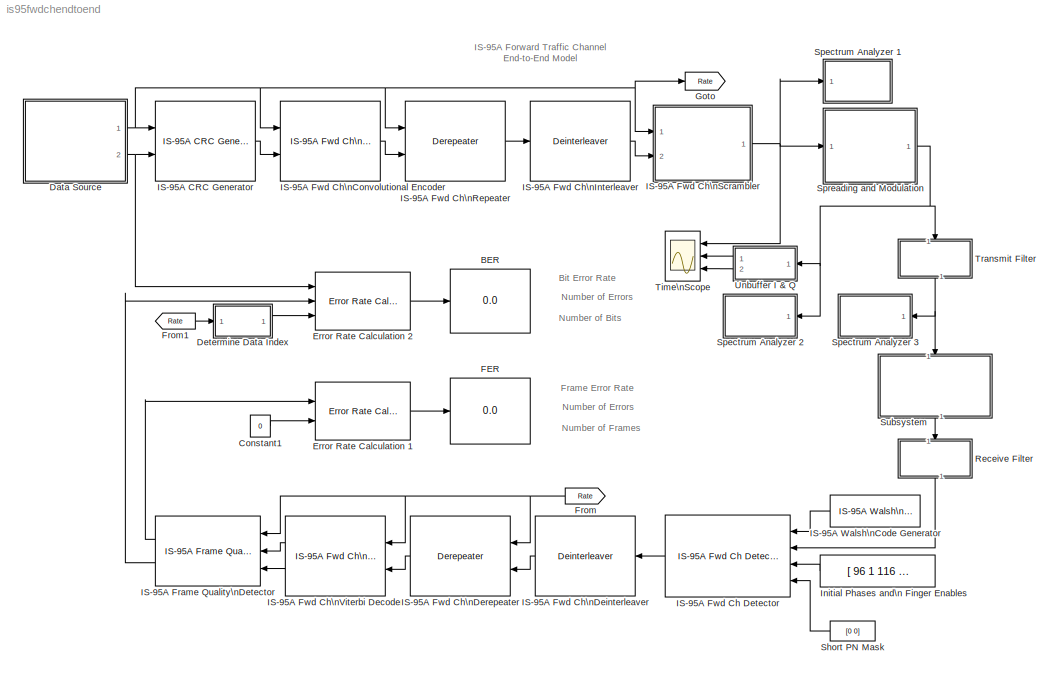
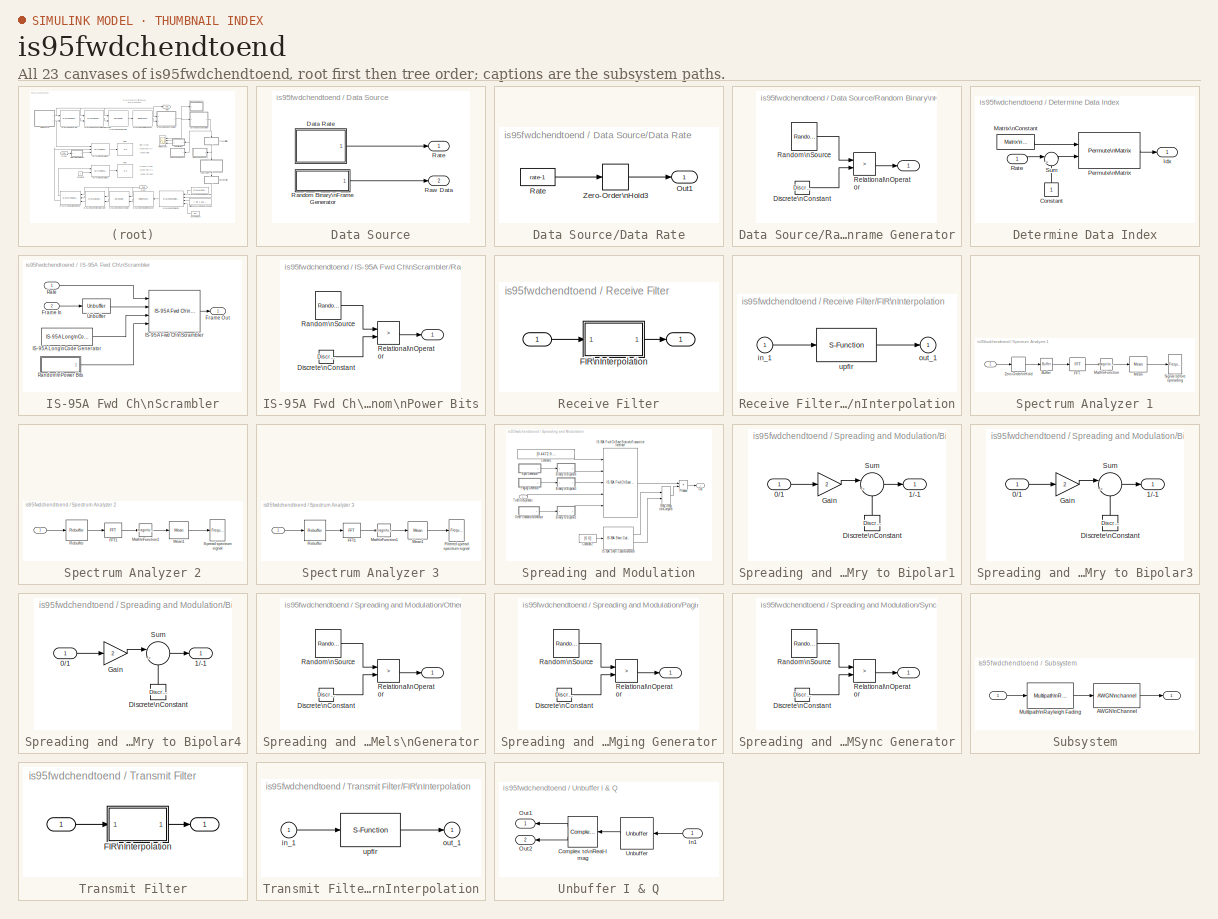
[diagram: thumbnail index - all 23 canvases of the model, root first then tree order]
MODEL is95fwdchendtoend
KIND model
CONFIG AbsTol = 1e-6
CONFIG FixedStep = auto
CONFIG MaxStep = auto
CONFIG MinStep = auto
CONFIG RelTol = 1e-3
CONFIG Solver = VariableStepDiscrete
CONFIG SolverMode = SingleTasking
CONFIG StartTime = 0.0
CONFIG StopTime = 600
BLOCK [Display] BER
  Decimation = 1
  Floating = off
  Format = short
  Ports = [1]
  SampleTime = -1
BLOCK [Constant] Constant1
  Value = 0
  VectorParams1D = on
BLOCK [SubSystem] Data Source
  Ports = [0, 2]
  RTWFcnNameOpts = Auto
  RTWFileNameOpts = Auto
  RTWSystemCode = Auto
  ShowPortLabels = on
  TreatAsAtomicUnit = off
BLOCK [SubSystem] Data Source/Data Rate
  MaskDisplay = disp('Base Station \\nTransmitter\\nData Rate')
  MaskEnableString = on
  MaskIconFrame = on
  MaskIconOpaque = on
  MaskIconRotate = none
  MaskIconUnits = autoscale
  MaskPromptString = Data Rate
  MaskStyleString = popup(Full|Half|Quarter|One-Eighth)
  MaskToolTipString = on
  MaskTunableValueString = on
  MaskValueString = Full
  MaskVariables = rate=@1;
  MaskVisibilityString = on
  Ports = [0, 1]
  RTWFcnNameOpts = Auto
  RTWFileNameOpts = Auto
  RTWSystemCode = Auto
  ShowPortLabels = on
  TreatAsAtomicUnit = off
BLOCK [Outport] Data Source/Data Rate/Out1
  InitialOutput = 0
  OutputWhenDisabled = held
  Port = 1
BLOCK [Constant] Data Source/Data Rate/Rate
  Value = rate-1
  VectorParams1D = on
BLOCK [ZeroOrderHold] Data Source/Data Rate/Zero-Order\nHold3
  SampleTime = 1/50
BLOCK [SubSystem] Data Source/Random Binary\nFrame Generator
  MaskCallbackString = ||
  MaskDescription = Generate a random frame of binary integers. The output frame period is \n(Sample time) * (Output frame size).
  MaskDisplay = plot(0,0,100,100,[95,90,90,80,80,60,60,30,30,20,20,10,10,5],[25,25,75,75,25,25,75,75,25,25,75,75,25,25]);
  MaskEnableString = on,on,on
  MaskIconFrame = on
  MaskIconOpaque = on
  MaskIconRotate = none
  MaskIconUnits = autoscale
  MaskPromptString = Initial seed:|Sample time (sec):|Output frame size:
  MaskStyleString = edit,edit,edit
  MaskToolTipString = on,on,on
  MaskTunableValueString = on,on,on
  MaskType = Random binary frame generator
  MaskValueString = 1234|1/(50*268)|268
  MaskVariableAliases = ,,
  MaskVariables = seed=@1;Ts=@2;N=@3;
  MaskVisibilityString = on,on,on
  Ports = [0, 1]
  RTWFcnNameOpts = Auto
  RTWFileNameOpts = Auto
  RTWSystemCode = Auto
  ShowPortLabels = on
  TreatAsAtomicUnit = off
BLOCK [Outport] Data Source/Random Binary\nFrame Generator/ 
  InitialOutput = []
  OutputWhenDisabled = held
  Port = 1
BLOCK [Reference] Data Source/Random Binary\nFrame Generator/Discrete\nConstant  REF=dspsrcs2/Discrete\nConstant
  Ports = [0, 1]
  SourceBlock = dspsrcs2/Discrete\nConstant
  SourceType = Discrete Constant
  Ts = Ts*N
  Value = 0
BLOCK [Reference] Data Source/Random Binary\nFrame Generator/Random\nSource  REF=dspsrcs2/Random\nSource
  Diagnostics = AllowInheritedTsInSrc
  Inherit = off
  Max = 1
  Mean = 0
  Min = 0
  OutComplex = Real
  Ports = [0, 1]
  SampFrame = N
  SampMode = Discrete
  SampTime = Ts
  Seed = seed
  SourceBlock = dspsrcs2/Random\nSource
  SourceType = Random Source
  SrcType = Gaussian
  Var = 1
BLOCK [RelationalOperator] Data Source/Random Binary\nFrame Generator/Relational\nOperator
  Operator = >
BLOCK [Outport] Data Source/Rate
  InitialOutput = 0
  OutputWhenDisabled = held
  Port = 1
BLOCK [Outport] Data Source/Raw Data
  InitialOutput = 0
  OutputWhenDisabled = held
  Port = 2
BLOCK [SubSystem] Determine Data Index
  MaskDescription = Deterime index of valid data in the frame based upon rate set and rate input.
  MaskEnableString = on
  MaskIconFrame = on
  MaskIconOpaque = on
  MaskIconRotate = none
  MaskIconUnits = autoscale
  MaskInitialization = if(rateSet==1)\n% --- Rate Set 1\n   R1F = buffer(1:172,268);\n   R1H = buffer(1:80,268);\n   R1Q = buffer(1:40,268);\n   R1E = buffer(1:16,268);\n   idxMat = [R1F R1H R1Q R1E];\nelse\n   % --- Rate Set 2\n   R2F = [1:268]';\n   R2H = buffer(1:126,268);\n   R2Q = buffer(1:56,268);\n   R2E = buffer(1:22,268);\n   idxMat = [R2F R2H R2Q R2E];\nend;\n
  MaskPromptString = Rate set:
  MaskStyleString = popup(Rate Set I|Rate Set II)
  MaskToolTipString = on
  MaskTunableValueString = on
  MaskType = Determine Data Index
  MaskValueString = Rate Set I
  MaskVariables = rateSet=@1;
  MaskVisibilityString = on
  Ports = [1, 1]
  RTWFcnNameOpts = Auto
  RTWFileNameOpts = Auto
  RTWSystemCode = Auto
  ShowPortLabels = on
  TreatAsAtomicUnit = off
BLOCK [Constant] Determine Data Index/Constant
  Value = 1
  VectorParams1D = on
BLOCK [Outport] Determine Data Index/Idx
  InitialOutput = []
  OutputWhenDisabled = held
  Port = 1
BLOCK [Reference] Determine Data Index/Matrix\nConstant  REF=dspmtrx2/Matrix\nConstant
  M = idxMat
  Ports = [0, 1]
  SourceBlock = dspmtrx2/Matrix\nConstant
  SourceType = Matrix Constant
BLOCK [Reference] Determine Data Index/Permute\nMatrix  REF=dspmtrx2/Permute\nMatrix
  Ports = [2, 1]
  SourceBlock = dspmtrx2/Permute\nMatrix
  SourceType = Permute Matrix
  cols = 4
  errmode = Clip Index
  mode = Columns
BLOCK [Inport] Determine Data Index/Rate
  Interpolate = on
  Port = 1
BLOCK [Sum] Determine Data Index/Sum
  IconShape = round
  Inputs = |++
  Ports = [2, 1]
  SaturateOnIntegerOverflow = on
BLOCK [Reference] Error Rate Calculation 1  REF=commsink/Error Rate Calculation
  N = 0
  PMode = Port
  Ports = [2, 1]
  RsMode2 = off
  SourceBlock = commsink/Error Rate Calculation
  SourceType = Error Rate Calculation
  WsName = ErrorVec
  cp_mode = Entire frame
  st_delay = 4
  subframe = []
BLOCK [Reference] Error Rate Calculation 2  REF=commsink/Error Rate Calculation
  N = 2*268
  PMode = Port
  Ports = [3, 1]
  RsMode2 = off
  SourceBlock = commsink/Error Rate Calculation
  SourceType = Error Rate Calculation
  WsName = ErrorVec
  cp_mode = Select samples from port
  st_delay = 2*268
  subframe = []
BLOCK [Display] FER
  Decimation = 1
  Floating = off
  Format = short
  Ports = [1]
  SampleTime = -1
BLOCK [From] From
  CloseFcn = tagdialog Close
  GotoTag = Rate
BLOCK [From] From1
  CloseFcn = tagdialog Close
  GotoTag = Rate
BLOCK [Goto] Goto
  GotoTag = Rate
  TagVisibility = local
BLOCK [Reference] IS-95A CRC Generator  REF=cdmalib/IS-95A Common/IS-95A CRC Generator  (lib defined in mdl_250e8a714707)
  Ports = [2, 1]
  SourceBlock = cdmalib/IS-95A Common/IS-95A CRC Generator
  SourceType = IS-95A CRC Generator
  ch_type = Traffic
  rate_set = Rate Set I
BLOCK [Reference] IS-95A Frame Quality\nDetector  REF=cdmalib/IS-95A Common/IS-95A Frame Quality \nDetector  (lib defined in mdl_250e8a714707)
  Ports = [3, 2]
  SourceBlock = cdmalib/IS-95A Common/IS-95A Frame Quality \nDetector
  SourceType = IS-95A Frame Quality Detector
  chType = Traffic
  rate2_metric = 0.9*1.5
  rate3_metric = 0.85*1.5
  rateSet = Rate Set I
BLOCK [Reference] IS-95A Fwd Ch Detector  REF=cdmalib/IS-95A Mobile Station Receiver/IS-95A Fwd Ch Detector  (lib defined in mdl_250e8a714707)
  Ports = [4, 1]
  SourceBlock = cdmalib/IS-95A Mobile Station Receiver/IS-95A Fwd Ch Detector
  SourceType = IS-95A Fwd Ch Detector
  numSymb = 1
  rake_buff_size = 3
  rake_oversamp = 8
  rateSet = Rate Set I
  sampTime = 1/(50*384)
  wlshOrd = 6
BLOCK [Reference] IS-95A Fwd Ch\nConvolutional Encoder  REF=cdmalib/IS-95A Base Station Transmitter/IS-95A Fwd Ch\nConvolutional Encoder  (lib defined in mdl_250e8a714707)
  Ports = [2, 1]
  SourceBlock = cdmalib/IS-95A Base Station Transmitter/IS-95A Fwd Ch\nConvolutional Encoder
  SourceType = IS-95A Fwd Ch Convolutional Encoder
  ch_type = Traffic
  enc_state = []
  rate_set = Rate Set I
BLOCK [Reference] IS-95A Fwd Ch\nDeinterleaver  REF=cdmalib/IS-95A Base Station Transmitter/IS-95A Fwd Ch\nInterleaver//Deinterleaver  (lib defined in mdl_250e8a714707)
  Ports = [1, 1]
  SourceBlock = cdmalib/IS-95A Base Station Transmitter/IS-95A Fwd Ch\nInterleaver//Deinterleaver
  SourceType = IS-95A Fwd Ch Interleaver/Deinterleaver
  ch_type = Traffic
  int_select = Deinterleaver
BLOCK [Reference] IS-95A Fwd Ch\nDerepeater  REF=cdmalib/IS-95A Base Station Transmitter/IS-95A Fwd Ch\nRepeater//Derepeater  (lib defined in mdl_250e8a714707)
  Ports = [2, 1]
  SourceBlock = cdmalib/IS-95A Base Station Transmitter/IS-95A Fwd Ch\nRepeater//Derepeater
  SourceType = IS-95A Fwd Ch Repeater/Derepeater
  ch_type = Traffic
  rate_set = Rate Set I
  rep_select = Derepeater
BLOCK [Reference] IS-95A Fwd Ch\nInterleaver  REF=cdmalib/IS-95A Base Station Transmitter/IS-95A Fwd Ch\nInterleaver//Deinterleaver  (lib defined in mdl_250e8a714707)
  Ports = [1, 1]
  SourceBlock = cdmalib/IS-95A Base Station Transmitter/IS-95A Fwd Ch\nInterleaver//Deinterleaver
  SourceType = IS-95A Fwd Ch Interleaver/Deinterleaver
  ch_type = Traffic
  int_select = Interleaver
BLOCK [Reference] IS-95A Fwd Ch\nRepeater  REF=cdmalib/IS-95A Base Station Transmitter/IS-95A Fwd Ch\nRepeater//Derepeater  (lib defined in mdl_250e8a714707)
  Ports = [2, 1]
  SourceBlock = cdmalib/IS-95A Base Station Transmitter/IS-95A Fwd Ch\nRepeater//Derepeater
  SourceType = IS-95A Fwd Ch Repeater/Derepeater
  ch_type = Traffic
  rate_set = Rate Set I
  rep_select = Repeater
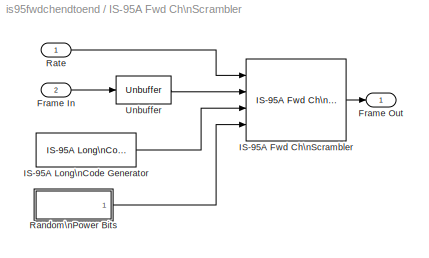
BLOCK [SubSystem] IS-95A Fwd Ch\nScrambler
  MaskCallbackString = |
  MaskDescription = Performs scrambling of the Forward Traffic channel data by the long code and the insertion of power bits in the data.
  MaskEnableString = on,on
  MaskHelp = web(cdmaweb);
  MaskIconFrame = on
  MaskIconOpaque = on
  MaskIconRotate = none
  MaskIconUnits = autoscale
  MaskPromptString = Rate Set|Channel Type
  MaskStyleString = popup(Rate Set I|Rate Set II),popup(Sync|Paging|Traffic)
  MaskToolTipString = on,on
  MaskTunableValueString = on,on
  MaskType = IS-95A Fwd Ch Scrambler
  MaskValueString = Rate Set I|Traffic
  MaskVariableAliases = ,
  MaskVariables = rate_set=@1;chType=@2;
  MaskVisibilityString = on,on
  Ports = [2, 1]
  RTWFcnNameOpts = Auto
  RTWFileNameOpts = Auto
  RTWSystemCode = Auto
  ShowPortLabels = on
  TreatAsAtomicUnit = off
BLOCK [Outport] IS-95A Fwd Ch\nScrambler/ Frame Out
  InitialOutput = 0
  OutputWhenDisabled = held
  Port = 1
BLOCK [Inport] IS-95A Fwd Ch\nScrambler/Frame In
  Interpolate = on
  Port = 2
BLOCK [Reference] IS-95A Fwd Ch\nScrambler/IS-95A Fwd Ch\nScrambler  REF=cdmalib/IS-95A Base Station Transmitter/IS-95A Fwd Ch\nScrambler  (lib defined in mdl_250e8a714707)
  Ports = [4, 1]
  SourceBlock = cdmalib/IS-95A Base Station Transmitter/IS-95A Fwd Ch\nScrambler
  SourceType = IS-95A Fwd Ch Scrambler
  chType = Traffic
  rate_set = Rate Set I
BLOCK [Reference] IS-95A Fwd Ch\nScrambler/IS-95A Long\nCode Generator  REF=cdmalib/IS-95A Common/IS-95A Long\nCode Generator  (lib defined in mdl_250e8a714707)
  Ports = [0, 1]
  SourceBlock = cdmalib/IS-95A Common/IS-95A Long\nCode Generator
  SourceType = IS-95A Long Code Generator
  num_symb = 1
  tx_lc_dec_ratio = 64
  tx_lc_init_mask = 2^41
  tx_lc_init_state = 2^41
  tx_sample_time = 1/(50*384)
BLOCK [SubSystem] IS-95A Fwd Ch\nScrambler/Random\nPower Bits
  MaskCallbackString = ||
  MaskDisplay = plot(0,0,100,100,[95,90,90,80,80,60,60,30,30,20,20,10,10,5],[25,25,75,75,25,25,75,75,25,25,75,75,25,25]);
  MaskEnableString = on,on,on
  MaskIconFrame = on
  MaskIconOpaque = on
  MaskIconRotate = none
  MaskIconUnits = autoscale
  MaskPromptString = Initial seed:|Sample time (sec):|Ouput frame size:
  MaskStyleString = edit,edit,edit
  MaskToolTipString = on,on,on
  MaskTunableValueString = on,on,on
  MaskType = Random binary frame generator
  MaskValueString = 956742|1/50/16|1
  MaskVariableAliases = ,,
  MaskVariables = seed=@1;Ts=@2;N=@3;
  MaskVisibilityString = on,on,on
  Ports = [0, 1]
  RTWFcnNameOpts = Auto
  RTWFileNameOpts = Auto
  RTWSystemCode = Auto
  ShowPortLabels = on
  TreatAsAtomicUnit = off
BLOCK [Outport] IS-95A Fwd Ch\nScrambler/Random\nPower Bits/ 
  InitialOutput = []
  OutputWhenDisabled = held
  Port = 1
BLOCK [Reference] IS-95A Fwd Ch\nScrambler/Random\nPower Bits/Discrete\nConstant  REF=dspsrcs2/Discrete\nConstant
  Ports = [0, 1]
  SourceBlock = dspsrcs2/Discrete\nConstant
  SourceType = Discrete Constant
  Ts = Ts*N
  Value = 0
BLOCK [Reference] IS-95A Fwd Ch\nScrambler/Random\nPower Bits/Random\nSource  REF=dspsrcs2/Random\nSource
  Diagnostics = AllowInheritedTsInSrc
  Inherit = off
  Max = 1
  Mean = 0
  Min = 0
  OutComplex = Real
  Ports = [0, 1]
  SampFrame = N
  SampMode = Discrete
  SampTime = Ts
  Seed = seed
  SourceBlock = dspsrcs2/Random\nSource
  SourceType = Random Source
  SrcType = Gaussian
  Var = 1
BLOCK [RelationalOperator] IS-95A Fwd Ch\nScrambler/Random\nPower Bits/Relational\nOperator
  Operator = >
BLOCK [Inport] IS-95A Fwd Ch\nScrambler/Rate
  Interpolate = on
  Port = 1
BLOCK [Reference] IS-95A Fwd Ch\nScrambler/Unbuffer  REF=dspbuff2/Unbuffer
  Ports = [1, 1]
  SourceBlock = dspbuff2/Unbuffer
  SourceType = Unbuffer
  ic = 0
  num_chans = 1
BLOCK [Reference] IS-95A Fwd Ch\nViterbi Decoder  REF=cdmalib/IS-95A Mobile Station Receiver/IS-95A Fwd Ch\nViterbi Decoder  (lib defined in mdl_250e8a714707)
  Ports = [2, 2]
  SourceBlock = cdmalib/IS-95A Mobile Station Receiver/IS-95A Fwd Ch\nViterbi Decoder
  SourceType = IS-95A Fwd Ch Viterbi Decoder
  chType = Traffic
  decodeLenRatio = 1
  rateSet = Rate Set I
  traceBackLenRatio = 1
BLOCK [Reference] IS-95A Walsh\nCode Generator  REF=cdmalib/IS-95A Common/IS-95A Walsh\nCode Generator  (lib defined in mdl_250e8a714707)
  Ports = [0, 1]
  SourceBlock = cdmalib/IS-95A Common/IS-95A Walsh\nCode Generator
  SourceType = IS-95A Walsh Code Generator
  st = 1/50/384
  wlshIndices = 38
  wlshOrd = 6
BLOCK [Constant] Initial Phases and\n Finger Enables
  Value = [ 96 1 116 1 239 1 0 0]
  VectorParams1D = on
BLOCK [SubSystem] Receive Filter
  MaskDisplay = plot( 1:prod( size( h)), h);
  MaskEnableString = on
  MaskIconFrame = on
  MaskIconOpaque = on
  MaskIconRotate = none
  MaskIconUnits = autoscale
  MaskInitialization = load txfiltx8.mat;\nh = (TxFiltCoefx8*N)/8;
  MaskPromptString = Interpolation factor:
  MaskStyleString = edit
  MaskToolTipString = on
  MaskTunableValueString = on
  MaskValueString = 1
  MaskVariables = N=@1;
  MaskVisibilityString = on
  Ports = [1, 1]
  RTWFcnNameOpts = Auto
  RTWFileNameOpts = Auto
  RTWSystemCode = Auto
  ShowPortLabels = on
  TreatAsAtomicUnit = off
BLOCK [Outport] Receive Filter/ 
  InitialOutput = []
  OutputWhenDisabled = held
  Port = 1
BLOCK [Inport] Receive Filter/   
  Interpolate = on
  Port = 1
BLOCK [SubSystem] Receive Filter/FIR\nInterpolation
  MaskCallbackString = ||dspblkupfir||
  MaskDescription = Upsample input signal by an integer factor, then apply an FIR filter.  Implemented using an efficient polyphase interpolation structure.  The filter coefficients are scaled by the interpolation factor.
  MaskDisplay = disp(str)
  MaskEnableString = on,on,on,on,on
  MaskHelp = web(dspbhelp);
  MaskIconFrame = on
  MaskIconOpaque = on
  MaskIconRotate = none
  MaskIconUnits = autoscale
  MaskInitialization = outputBufInitCond = 0;\n[str,numChans] = dspblkupfir('setup1',numChans);\n[h,framing,str]= dspblkupfir('setup2',h,L,framing);
  MaskPromptString = FIR filter coefficients:|Interpolation factor:|Frame-based inputs|Number of channels:|Framing:
  MaskSelfModifiable = on
  MaskStyleString = edit,edit,checkbox,edit,popup(Maintain input frame size|Maintain input frame rate)
  MaskToolTipString = on,on,on,on,on
  MaskTunableValueString = off,off,off,off,off
  MaskType = FIR Interpolation
  MaskValueString = h|N|on|1|Maintain input frame rate
  MaskVariableAliases = ,,,,
  MaskVariables = h=@1;L=@2;frame=&3;numChans=@4;framing=@5;
  MaskVisibilityString = on,on,on,on,on
  Ports = [1, 1]
  RTWFcnNameOpts = Auto
  RTWFileNameOpts = Auto
  RTWSystemCode = Auto
  ShowPortLabels = on
  TreatAsAtomicUnit = off
BLOCK [Inport] Receive Filter/FIR\nInterpolation/in_1
  Interpolate = on
  Port = 1
BLOCK [Outport] Receive Filter/FIR\nInterpolation/out_1
  InitialOutput = 0
  OutputWhenDisabled = held
  Port = 1
BLOCK [S-Function] Receive Filter/FIR\nInterpolation/upfir
  FunctionName = sdspupfir
  Parameters = h,L,numChans,framing,outputBufInitCond
  PortCounts = []
  Ports = [1, 1]
  SFunctionModules = ''
BLOCK [Constant] Short PN Mask
  Value = [0 0]
  VectorParams1D = on
BLOCK [SubSystem] Spectrum Analyzer 1
  MaskDisplay = disp('Spectrum\\nAnalyzer');
  MaskIconFrame = on
  MaskIconOpaque = on
  MaskIconRotate = none
  MaskIconUnits = autoscale
  Ports = [1]
  RTWFcnNameOpts = Auto
  RTWFileNameOpts = Auto
  RTWSystemCode = Auto
  ShowPortLabels = on
  TreatAsAtomicUnit = off
BLOCK [Inport] Spectrum Analyzer 1/ 
  Interpolate = on
  Port = 1
BLOCK [Reference] Spectrum Analyzer 1/Buffer  REF=dspbuff2/Buffer
  N = 1024
  Ports = [1, 1]
  SourceBlock = dspbuff2/Buffer
  SourceType = Buffer
  V = 0
  ic = 0
BLOCK [Reference] Spectrum Analyzer 1/FFT  REF=dspxfrm2/FFT
  Ports = [1, 1]
  SourceBlock = dspxfrm2/FFT
  SourceType = FFT
  nchans = 1
BLOCK [Math] Spectrum Analyzer 1/Math\nFunction
  Operator = magnitude^2
  OutputSignalType = auto
  Ports = [1, 1]
BLOCK [Reference] Spectrum Analyzer 1/Mean  REF=dspstat2/Mean
  Ports = [1, 1]
  SourceBlock = dspstat2/Mean
  SourceType = Mean
  frame = off
  nchans = 1
  reset = off
  run = on
BLOCK [Reference] Spectrum Analyzer 1/Signal before spreading  REF=dspsnks2/Frequency\nFrame Scope
  AxisGrid = on
  AxisLegend = off
  AxisParams = on
  AxisZoom = on
  Domain = Frequency
  FigPos = [339 599 602 134]
  FrameNumber = off
  HorizSpan = 1
  LineParams = off
  Memory = off
  NChans = 1
  Ports = [1]
  SourceBlock = dspsnks2/Frequency\nFrame Scope
  SourceType = Frequency Frame Scope
  XIncr = -1
  XLabel = Samples
  XRange = [-Fs/2...Fs/2]
  XUnits = Hertz
  YLabel = Magnitude, dB
  YMax = 100
  YMin = -10
  YUnits = dB
BLOCK [ZeroOrderHold] Spectrum Analyzer 1/Zero-Order\nHold
  SampleTime = 1/50/384/64
BLOCK [SubSystem] Spectrum Analyzer 2
  MaskDisplay = disp('Spectrum\\nAnalyzer');
  MaskIconFrame = on
  MaskIconOpaque = on
  MaskIconRotate = none
  MaskIconUnits = autoscale
  Ports = [1]
  RTWFcnNameOpts = Auto
  RTWFileNameOpts = Auto
  RTWSystemCode = Auto
  ShowPortLabels = on
  TreatAsAtomicUnit = off
BLOCK [Inport] Spectrum Analyzer 2/ 
  Interpolate = on
  Port = 1
BLOCK [Reference] Spectrum Analyzer 2/FFT1  REF=dspxfrm2/FFT
  Ports = [1, 1]
  SourceBlock = dspxfrm2/FFT
  SourceType = FFT
  nchans = 1
BLOCK [Math] Spectrum Analyzer 2/Math\nFunction1
  Operator = magnitude^2
  OutputSignalType = auto
  Ports = [1, 1]
BLOCK [Reference] Spectrum Analyzer 2/Mean1  REF=dspstat2/Mean
  Ports = [1, 1]
  SourceBlock = dspstat2/Mean
  SourceType = Mean
  frame = off
  nchans = 1
  reset = off
  run = on
BLOCK [Reference] Spectrum Analyzer 2/Rebuffer  REF=dspbuff2/Rebuffer
  N = 1024
  Ports = [1, 1]
  SourceBlock = dspbuff2/Rebuffer
  SourceType = Rebuffer
  Specify_Out_Size = on
  V = 0
  frame = on
  ic = 0
  num_chans = 1
BLOCK [Reference] Spectrum Analyzer 2/Spread spectrum signal  REF=dspsnks2/Frequency\nFrame Scope
  AxisGrid = on
  AxisLegend = off
  AxisParams = on
  AxisZoom = on
  Domain = Frequency
  FigPos = [339 439 602 134]
  FrameNumber = off
  HorizSpan = 1
  LineParams = off
  Memory = off
  NChans = 1
  Ports = [1]
  SourceBlock = dspsnks2/Frequency\nFrame Scope
  SourceType = Frequency Frame Scope
  XIncr = -1
  XLabel = Samples
  XRange = [-Fs/2...Fs/2]
  XUnits = Hertz
  YLabel = Magnitude, dB
  YMax = 100
  YMin = -10
  YUnits = dB
BLOCK [SubSystem] Spectrum Analyzer 3
  MaskDisplay = disp('Spectrum\\nAnalyzer');
  MaskIconFrame = on
  MaskIconOpaque = on
  MaskIconRotate = none
  MaskIconUnits = autoscale
  Ports = [1]
  RTWFcnNameOpts = Auto
  RTWFileNameOpts = Auto
  RTWSystemCode = Auto
  ShowPortLabels = on
  TreatAsAtomicUnit = off
BLOCK [Inport] Spectrum Analyzer 3/ 
  Interpolate = on
  Port = 1
BLOCK [Reference] Spectrum Analyzer 3/FFT1  REF=dspxfrm2/FFT
  Ports = [1, 1]
  SourceBlock = dspxfrm2/FFT
  SourceType = FFT
  nchans = 1
BLOCK [Reference] Spectrum Analyzer 3/Filtered spread spectrum signal  REF=dspsnks2/Frequency\nFrame Scope
  AxisGrid = on
  AxisLegend = off
  AxisParams = on
  AxisZoom = on
  Domain = Frequency
  FigPos = [339 281 602 134]
  FrameNumber = off
  HorizSpan = 1
  LineParams = off
  Memory = off
  NChans = 1
  Ports = [1]
  SourceBlock = dspsnks2/Frequency\nFrame Scope
  SourceType = Frequency Frame Scope
  XIncr = -1
  XLabel = Samples
  XRange = [-Fs/2...Fs/2]
  XUnits = Hertz
  YLabel = Magnitude, dB
  YMax = 100
  YMin = -10
  YUnits = dB
BLOCK [Math] Spectrum Analyzer 3/Math\nFunction1
  Operator = magnitude^2
  OutputSignalType = auto
  Ports = [1, 1]
BLOCK [Reference] Spectrum Analyzer 3/Mean1  REF=dspstat2/Mean
  Ports = [1, 1]
  SourceBlock = dspstat2/Mean
  SourceType = Mean
  frame = off
  nchans = 1
  reset = off
  run = on
BLOCK [Reference] Spectrum Analyzer 3/Rebuffer  REF=dspbuff2/Rebuffer
  N = 8192
  Ports = [1, 1]
  SourceBlock = dspbuff2/Rebuffer
  SourceType = Rebuffer
  Specify_Out_Size = on
  V = 0
  frame = on
  ic = 0
  num_chans = 1
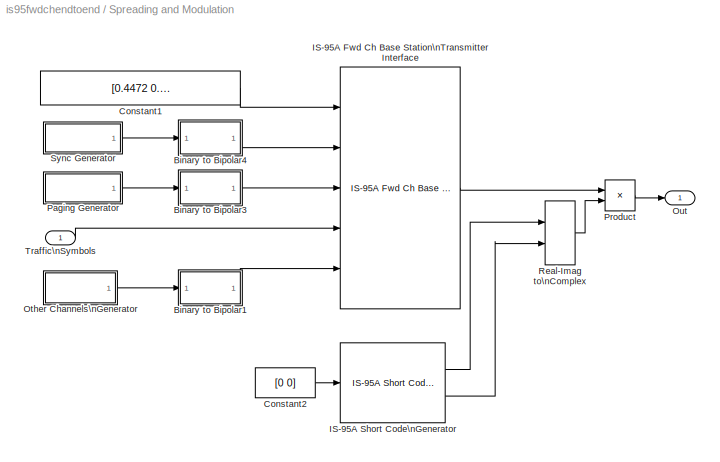
BLOCK [SubSystem] Spreading and Modulation
  MaskDisplay = disp('Combine with\\nSync & Paging\\n---\\nSS Modulate')
  MaskIconFrame = on
  MaskIconOpaque = on
  MaskIconRotate = none
  MaskIconUnits = autoscale
  Ports = [1, 1]
  RTWFcnNameOpts = Auto
  RTWFileNameOpts = Auto
  RTWSystemCode = Auto
  ShowPortLabels = on
  TreatAsAtomicUnit = off
BLOCK [SubSystem] Spreading and Modulation/Binary to Bipolar1
  MaskDescription = Binary to Bipolar Transformation.
  MaskIconFrame = on
  MaskIconOpaque = on
  MaskIconRotate = none
  MaskIconUnits = autoscale
  MaskType = Binary to Bipolar Transformation
  Ports = [1, 1]
  RTWFcnNameOpts = Auto
  RTWFileNameOpts = Auto
  RTWSystemCode = Auto
  ShowPortLabels = on
  TreatAsAtomicUnit = off
BLOCK [Inport] Spreading and Modulation/Binary to Bipolar1/0//1
  Interpolate = on
  Port = 1
BLOCK [Outport] Spreading and Modulation/Binary to Bipolar1/1//-1
  InitialOutput = 0
  OutputWhenDisabled = held
  Port = 1
BLOCK [Reference] Spreading and Modulation/Binary to Bipolar1/Discrete\nConstant  REF=dspsrcs2/Discrete\nConstant
  Ports = [0, 1]
  SourceBlock = dspsrcs2/Discrete\nConstant
  SourceType = Discrete Constant
  Ts = 1/(50*384)
  Value = 1
BLOCK [Gain] Spreading and Modulation/Binary to Bipolar1/Gain
  Gain = 2
  Multiplication = Element-wise(K.*u)
  SaturateOnIntegerOverflow = on
BLOCK [Sum] Spreading and Modulation/Binary to Bipolar1/Sum
  IconShape = round
  Inputs = |-+
  Ports = [2, 1]
  SaturateOnIntegerOverflow = on
BLOCK [SubSystem] Spreading and Modulation/Binary to Bipolar3
  MaskDescription = Binary to Bipolar Transformation.
  MaskIconFrame = on
  MaskIconOpaque = on
  MaskIconRotate = none
  MaskIconUnits = autoscale
  MaskType = Binary to Bipolar Transformation
  Ports = [1, 1]
  RTWFcnNameOpts = Auto
  RTWFileNameOpts = Auto
  RTWSystemCode = Auto
  ShowPortLabels = on
  TreatAsAtomicUnit = off
BLOCK [Inport] Spreading and Modulation/Binary to Bipolar3/0//1
  Interpolate = on
  Port = 1
BLOCK [Outport] Spreading and Modulation/Binary to Bipolar3/1//-1
  InitialOutput = 0
  OutputWhenDisabled = held
  Port = 1
BLOCK [Reference] Spreading and Modulation/Binary to Bipolar3/Discrete\nConstant  REF=dspsrcs2/Discrete\nConstant
  Ports = [0, 1]
  SourceBlock = dspsrcs2/Discrete\nConstant
  SourceType = Discrete Constant
  Ts = 1/(50*384)
  Value = 1
BLOCK [Gain] Spreading and Modulation/Binary to Bipolar3/Gain
  Gain = 2
  Multiplication = Element-wise(K.*u)
  SaturateOnIntegerOverflow = on
BLOCK [Sum] Spreading and Modulation/Binary to Bipolar3/Sum
  IconShape = round
  Inputs = |-+
  Ports = [2, 1]
  SaturateOnIntegerOverflow = on
BLOCK [SubSystem] Spreading and Modulation/Binary to Bipolar4
  MaskDescription = Binary to Bipolar Transformation.
  MaskIconFrame = on
  MaskIconOpaque = on
  MaskIconRotate = none
  MaskIconUnits = autoscale
  MaskType = Binary to Bipolar Transformation
  Ports = [1, 1]
  RTWFcnNameOpts = Auto
  RTWFileNameOpts = Auto
  RTWSystemCode = Auto
  ShowPortLabels = on
  TreatAsAtomicUnit = off
BLOCK [Inport] Spreading and Modulation/Binary to Bipolar4/0//1
  Interpolate = on
  Port = 1
BLOCK [Outport] Spreading and Modulation/Binary to Bipolar4/1//-1
  InitialOutput = 0
  OutputWhenDisabled = held
  Port = 1
BLOCK [Reference] Spreading and Modulation/Binary to Bipolar4/Discrete\nConstant  REF=dspsrcs2/Discrete\nConstant
  Ports = [0, 1]
  SourceBlock = dspsrcs2/Discrete\nConstant
  SourceType = Discrete Constant
  Ts = 4 * 1/(50*384)
  Value = 1
BLOCK [Gain] Spreading and Modulation/Binary to Bipolar4/Gain
  Gain = 2
  Multiplication = Element-wise(K.*u)
  SaturateOnIntegerOverflow = on
BLOCK [Sum] Spreading and Modulation/Binary to Bipolar4/Sum
  IconShape = round
  Inputs = |-+
  Ports = [2, 1]
  SaturateOnIntegerOverflow = on
BLOCK [Constant] Spreading and Modulation/Constant1
  Value = [0.4472  0.2170  0.4338  0.306  0.6860]
  VectorParams1D = on
BLOCK [Constant] Spreading and Modulation/Constant2
  Value = [0 0]
  VectorParams1D = on
BLOCK [Reference] Spreading and Modulation/IS-95A Fwd Ch Base Station\nTransmitter Interface  REF=cdmalib/IS-95A Base Station Transmitter/IS-95A Fwd Ch Base Station\nTransmitter Interface  (lib defined in mdl_250e8a714707)
  Ports = [5, 1]
  SourceBlock = cdmalib/IS-95A Base Station Transmitter/IS-95A Fwd Ch Base Station\nTransmitter Interface
  SourceType = IS-95A Fwd Ch Base Station Transmitter Interface
  paging_rate = Full
  sampTime = 1/(50*384)
  wlshOrd = 6
  wlsh_indices = [0 32 47 38 23]
BLOCK [Reference] Spreading and Modulation/IS-95A Short Code\nGenerator  REF=cdmalib/IS-95A Common/IS-95A Short Code\nGenerator  (lib defined in mdl_250e8a714707)
  Ports = [1, 2]
  SourceBlock = cdmalib/IS-95A Common/IS-95A Short Code\nGenerator
  SourceType = IS-95A Short Code Generator
  numOut = 64
  sampTime = 1/(50*384)
BLOCK [SubSystem] Spreading and Modulation/Other Channels\nGenerator
  MaskCallbackString = ||
  MaskDescription = Generate a random frame of binary integers. The output frame period is \n(Sample time) * (Output frame size).
  MaskDisplay = plot(0,0,100,100,[95,90,90,80,80,60,60,30,30,20,20,10,10,5],[25,25,75,75,25,25,75,75,25,25,75,75,25,25]);
  MaskEnableString = on,on,on
  MaskIconFrame = on
  MaskIconOpaque = on
  MaskIconRotate = none
  MaskIconUnits = autoscale
  MaskPromptString = Initial seed:|Sample time (sec):|Output frame size:
  MaskStyleString = edit,edit,edit
  MaskToolTipString = on,on,on
  MaskTunableValueString = on,on,on
  MaskType = Random binary frame generator
  MaskValueString = 98767657|1/(50*384)|1
  MaskVariableAliases = ,,
  MaskVariables = seed=@1;Ts=@2;N=@3;
  MaskVisibilityString = on,on,on
  Ports = [0, 1]
  RTWFcnNameOpts = Auto
  RTWFileNameOpts = Auto
  RTWSystemCode = Auto
  ShowPortLabels = on
  TreatAsAtomicUnit = off
BLOCK [Outport] Spreading and Modulation/Other Channels\nGenerator/ 
  InitialOutput = []
  OutputWhenDisabled = held
  Port = 1
BLOCK [Reference] Spreading and Modulation/Other Channels\nGenerator/Discrete\nConstant  REF=dspsrcs2/Discrete\nConstant
  Ports = [0, 1]
  SourceBlock = dspsrcs2/Discrete\nConstant
  SourceType = Discrete Constant
  Ts = Ts*N
  Value = 0
BLOCK [Reference] Spreading and Modulation/Other Channels\nGenerator/Random\nSource  REF=dspsrcs2/Random\nSource
  Diagnostics = AllowInheritedTsInSrc
  Inherit = off
  Max = 1
  Mean = 0
  Min = 0
  OutComplex = Real
  Ports = [0, 1]
  SampFrame = N
  SampMode = Discrete
  SampTime = Ts
  Seed = seed
  SourceBlock = dspsrcs2/Random\nSource
  SourceType = Random Source
  SrcType = Gaussian
  Var = 1
BLOCK [RelationalOperator] Spreading and Modulation/Other Channels\nGenerator/Relational\nOperator
  Operator = >
BLOCK [Outport] Spreading and Modulation/Out 
  InitialOutput = 0
  OutputWhenDisabled = held
  Port = 1
BLOCK [SubSystem] Spreading and Modulation/Paging Generator
  MaskCallbackString = ||
  MaskDescription = Generate a random frame of binary integers. The output frame period is \n(Sample time) * (Output frame size).
  MaskDisplay = plot(0,0,100,100,[95,90,90,80,80,60,60,30,30,20,20,10,10,5],[25,25,75,75,25,25,75,75,25,25,75,75,25,25]);
  MaskEnableString = on,on,on
  MaskIconFrame = on
  MaskIconOpaque = on
  MaskIconRotate = none
  MaskIconUnits = autoscale
  MaskPromptString = Initial seed:|Sample time (sec):|Output frame size:
  MaskStyleString = edit,edit,edit
  MaskToolTipString = on,on,on
  MaskTunableValueString = on,on,on
  MaskType = Random binary frame generator
  MaskValueString = 76767|1/(50*384)|1
  MaskVariableAliases = ,,
  MaskVariables = seed=@1;Ts=@2;N=@3;
  MaskVisibilityString = on,on,on
  Ports = [0, 1]
  RTWFcnNameOpts = Auto
  RTWFileNameOpts = Auto
  RTWSystemCode = Auto
  ShowPortLabels = on
  TreatAsAtomicUnit = off
BLOCK [Outport] Spreading and Modulation/Paging Generator/ 
  InitialOutput = []
  OutputWhenDisabled = held
  Port = 1
BLOCK [Reference] Spreading and Modulation/Paging Generator/Discrete\nConstant  REF=dspsrcs2/Discrete\nConstant
  Ports = [0, 1]
  SourceBlock = dspsrcs2/Discrete\nConstant
  SourceType = Discrete Constant
  Ts = Ts*N
  Value = 0
BLOCK [Reference] Spreading and Modulation/Paging Generator/Random\nSource  REF=dspsrcs2/Random\nSource
  Diagnostics = AllowInheritedTsInSrc
  Inherit = off
  Max = 1
  Mean = 0
  Min = 0
  OutComplex = Real
  Ports = [0, 1]
  SampFrame = N
  SampMode = Discrete
  SampTime = Ts
  Seed = seed
  SourceBlock = dspsrcs2/Random\nSource
  SourceType = Random Source
  SrcType = Gaussian
  Var = 1
BLOCK [RelationalOperator] Spreading and Modulation/Paging Generator/Relational\nOperator
  Operator = >
BLOCK [Product] Spreading and Modulation/Product
  Inputs = 2
  Multiplication = Element-wise(.*)
  Ports = [2, 1]
  SaturateOnIntegerOverflow = on
BLOCK [RealImagToComplex] Spreading and Modulation/Real-Imag to\nComplex
  ConstantPart = 0
  Input = RealAndImag
  Ports = [2, 1]
BLOCK [SubSystem] Spreading and Modulation/Sync Generator
  MaskCallbackString = ||
  MaskDescription = Generate a random frame of binary integers. The output frame period is \n(Sample time) * (Output frame size).
  MaskDisplay = plot(0,0,100,100,[95,90,90,80,80,60,60,30,30,20,20,10,10,5],[25,25,75,75,25,25,75,75,25,25,75,75,25,25]);
  MaskEnableString = on,on,on
  MaskIconFrame = on
  MaskIconOpaque = on
  MaskIconRotate = none
  MaskIconUnits = autoscale
  MaskPromptString = Initial seed:|Sample time (sec):|Output frame size:
  MaskStyleString = edit,edit,edit
  MaskToolTipString = on,on,on
  MaskTunableValueString = on,on,on
  MaskType = Random binary frame generator
  MaskValueString = 465789|4 * 1/(50*384)|1
  MaskVariableAliases = ,,
  MaskVariables = seed=@1;Ts=@2;N=@3;
  MaskVisibilityString = on,on,on
  Ports = [0, 1]
  RTWFcnNameOpts = Auto
  RTWFileNameOpts = Auto
  RTWSystemCode = Auto
  ShowPortLabels = on
  TreatAsAtomicUnit = off
BLOCK [Outport] Spreading and Modulation/Sync Generator/ 
  InitialOutput = []
  OutputWhenDisabled = held
  Port = 1
BLOCK [Reference] Spreading and Modulation/Sync Generator/Discrete\nConstant  REF=dspsrcs2/Discrete\nConstant
  Ports = [0, 1]
  SourceBlock = dspsrcs2/Discrete\nConstant
  SourceType = Discrete Constant
  Ts = Ts*N
  Value = 0
BLOCK [Reference] Spreading and Modulation/Sync Generator/Random\nSource  REF=dspsrcs2/Random\nSource
  Diagnostics = AllowInheritedTsInSrc
  Inherit = off
  Max = 1
  Mean = 0
  Min = 0
  OutComplex = Real
  Ports = [0, 1]
  SampFrame = N
  SampMode = Discrete
  SampTime = Ts
  Seed = seed
  SourceBlock = dspsrcs2/Random\nSource
  SourceType = Random Source
  SrcType = Gaussian
  Var = 1
BLOCK [RelationalOperator] Spreading and Modulation/Sync Generator/Relational\nOperator
  Operator = >
BLOCK [Inport] Spreading and Modulation/Traffic\nSymbols
  Interpolate = on
  Port = 1
BLOCK [SubSystem] Subsystem
  MaskDisplay = disp('Rayleigh Multipath\\n and  AWGN\\nChannel')
  MaskIconFrame = on
  MaskIconOpaque = on
  MaskIconRotate = none
  MaskIconUnits = autoscale
  Ports = [1, 1]
  RTWFcnNameOpts = Auto
  RTWFileNameOpts = Auto
  RTWSystemCode = Auto
  ShowPortLabels = on
  TreatAsAtomicUnit = off
BLOCK [Inport] Subsystem/ 
  Interpolate = on
  Port = 1
BLOCK [Outport] Subsystem/  
  InitialOutput = []
  OutputWhenDisabled = held
  Port = 1
BLOCK [Reference] Subsystem/AWGN\nChannel  REF=commchan/AWGN\nchannel
  EsNodB = -3.0
  FrameBased = on
  Ports = [1, 1]
  Ps = 2
  SNRdB = 4.3-9
  SourceBlock = commchan/AWGN\nchannel
  SourceType = AWGN Channel
  Tsym = 1/1228800
  nChans = 1
  noiseMode = Signal to noise ratio  (Es/No)
  seed = 17583
  variance = 1
BLOCK [Reference] Subsystem/Multipath\nRayleigh Fading  REF=commchan/Multipath\nRayleigh Fading
  Fd = 175.92
  Ports = [1, 1]
  Seed = 1234
  SourceBlock = commchan/Multipath\nRayleigh Fading
  SourceType = Multipath Rayleigh Fading
  delayVec = [0 2e-6 14.5e-6]
  gainVecdB = [0 0 -3]
  normGain = on
  simTs = 1/(1228800*8)
BLOCK [Scope] Time\nScope
  DataFormat = Structure
  Decimation = 1
  Floating = off
  Grid = on
  LimitDataPoints = on
  MaxDataPoints = 5000
  NumInputPorts = 3
  Ports = [3]
  SampleInput = off
  SampleTime = 0
  SaveName = ScopeData
  SaveToWorkspace = off
  TickLabels = OneTimeTick
  TimeRange = 0.001041666666666667
  YMax = 3~3~3
  YMin = -3~-3~-3
  ZoomMode = on
BLOCK [SubSystem] Transmit Filter
  MaskDisplay = plot( 1:prod( size( h)), h);
  MaskEnableString = on
  MaskIconFrame = on
  MaskIconOpaque = on
  MaskIconRotate = none
  MaskIconUnits = autoscale
  MaskInitialization = load txfiltx8.mat;\nh = (TxFiltCoefx8*N)/8;
  MaskPromptString = Interpolation factor:
  MaskStyleString = edit
  MaskToolTipString = on
  MaskTunableValueString = on
  MaskValueString = 8
  MaskVariables = N=@1;
  MaskVisibilityString = on
  Ports = [1, 1]
  RTWFcnNameOpts = Auto
  RTWFileNameOpts = Auto
  RTWSystemCode = Auto
  ShowPortLabels = on
  TreatAsAtomicUnit = off
BLOCK [Outport] Transmit Filter/ 
  InitialOutput = []
  OutputWhenDisabled = held
  Port = 1
BLOCK [Inport] Transmit Filter/   
  Interpolate = on
  Port = 1
BLOCK [SubSystem] Transmit Filter/FIR\nInterpolation
  MaskCallbackString = ||dspblkupfir||
  MaskDescription = Upsample input signal by an integer factor, then apply an FIR filter.  Implemented using an efficient polyphase interpolation structure.  The filter coefficients are scaled by the interpolation factor.
  MaskDisplay = disp(str)
  MaskEnableString = on,on,on,on,on
  MaskHelp = web(dspbhelp);
  MaskIconFrame = on
  MaskIconOpaque = on
  MaskIconRotate = none
  MaskIconUnits = autoscale
  MaskInitialization = outputBufInitCond = 0;\n[str,numChans] = dspblkupfir('setup1',numChans);\n[h,framing,str]= dspblkupfir('setup2',h,L,framing);
  MaskPromptString = FIR filter coefficients:|Interpolation factor:|Frame-based inputs|Number of channels:|Framing:
  MaskSelfModifiable = on
  MaskStyleString = edit,edit,checkbox,edit,popup(Maintain input frame size|Maintain input frame rate)
  MaskToolTipString = on,on,on,on,on
  MaskTunableValueString = off,off,off,off,off
  MaskType = FIR Interpolation
  MaskValueString = h|N|on|1|Maintain input frame rate
  MaskVariableAliases = ,,,,
  MaskVariables = h=@1;L=@2;frame=&3;numChans=@4;framing=@5;
  MaskVisibilityString = on,on,on,on,on
  Ports = [1, 1]
  RTWFcnNameOpts = Auto
  RTWFileNameOpts = Auto
  RTWSystemCode = Auto
  ShowPortLabels = on
  TreatAsAtomicUnit = off
BLOCK [Inport] Transmit Filter/FIR\nInterpolation/in_1
  Interpolate = on
  Port = 1
BLOCK [Outport] Transmit Filter/FIR\nInterpolation/out_1
  InitialOutput = 0
  OutputWhenDisabled = held
  Port = 1
BLOCK [S-Function] Transmit Filter/FIR\nInterpolation/upfir
  FunctionName = sdspupfir
  Parameters = h,L,numChans,framing,outputBufInitCond
  PortCounts = []
  Ports = [1, 1]
  SFunctionModules = ''
BLOCK [SubSystem] Unbuffer I & Q
  MaskDisplay = disp('Unbuffer\\nI & Q');
  MaskIconFrame = on
  MaskIconOpaque = on
  MaskIconRotate = none
  MaskIconUnits = autoscale
  Ports = [1, 2]
  RTWFcnNameOpts = Auto
  RTWFileNameOpts = Auto
  RTWSystemCode = Auto
  ShowPortLabels = on
  TreatAsAtomicUnit = off
BLOCK [ComplexToRealImag] Unbuffer I & Q/Complex to\nReal-Imag
  Output = RealAndImag
  Ports = [1, 2]
BLOCK [Inport] Unbuffer I & Q/In1
  Interpolate = on
  Port = 1
BLOCK [Outport] Unbuffer I & Q/Out1
  InitialOutput = []
  OutputWhenDisabled = held
  Port = 1
BLOCK [Outport] Unbuffer I & Q/Out2
  InitialOutput = []
  OutputWhenDisabled = held
  Port = 2
BLOCK [Reference] Unbuffer I & Q/Unbuffer  REF=dspbuff2/Unbuffer
  Ports = [1, 1]
  SourceBlock = dspbuff2/Unbuffer
  SourceType = Unbuffer
  ic = 0
  num_chans = 1
LINE Constant1:1 -> Error Rate Calculation 1:2
LINE Data Source/Data Rate/Rate:1 -> Data Source/Data Rate/Zero-Order\nHold3:1
LINE Data Source/Data Rate/Zero-Order\nHold3:1 -> Data Source/Data Rate/Out1:1
LINE Data Source/Data Rate:1 -> Data Source/Rate:1
LINE Data Source/Random Binary\nFrame Generator/Discrete\nConstant:1 -> Data Source/Random Binary\nFrame Generator/Relational\nOperator:2
LINE Data Source/Random Binary\nFrame Generator/Random\nSource:1 -> Data Source/Random Binary\nFrame Generator/Relational\nOperator:1
LINE Data Source/Random Binary\nFrame Generator/Relational\nOperator:1 -> Data Source/Random Binary\nFrame Generator/ :1
LINE Data Source/Random Binary\nFrame Generator:1 -> Data Source/Raw Data:1
NET Data Source:1 -> Goto:1, IS-95A CRC Generator:1, IS-95A Fwd Ch\nConvolutional Encoder:1, IS-95A Fwd Ch\nRepeater:1, IS-95A Fwd Ch\nScrambler:1
NET Data Source:2 -> Error Rate Calculation 2:1, IS-95A CRC Generator:2
LINE Determine Data Index/Constant:1 -> Determine Data Index/Sum:2
LINE Determine Data Index/Matrix\nConstant:1 -> Determine Data Index/Permute\nMatrix:1
LINE Determine Data Index/Permute\nMatrix:1 -> Determine Data Index/Idx:1
LINE Determine Data Index/Rate:1 -> Determine Data Index/Sum:1
LINE Determine Data Index/Sum:1 -> Determine Data Index/Permute\nMatrix:2
LINE Determine Data Index:1 -> Error Rate Calculation 2:3
LINE Error Rate Calculation 1:1 -> FER:1
LINE Error Rate Calculation 2:1 -> BER:1
LINE From1:1 -> Determine Data Index:1
NET From:1 -> IS-95A Frame Quality\nDetector:1, IS-95A Fwd Ch\nDerepeater:1, IS-95A Fwd Ch\nViterbi Decoder:1
LINE IS-95A CRC Generator:1 -> IS-95A Fwd Ch\nConvolutional Encoder:2
LINE IS-95A Frame Quality\nDetector:1 -> Error Rate Calculation 1:1
LINE IS-95A Frame Quality\nDetector:2 -> Error Rate Calculation 2:2
LINE IS-95A Fwd Ch Detector:1 -> IS-95A Fwd Ch\nDeinterleaver:1
LINE IS-95A Fwd Ch\nConvolutional Encoder:1 -> IS-95A Fwd Ch\nRepeater:2
LINE IS-95A Fwd Ch\nDeinterleaver:1 -> IS-95A Fwd Ch\nDerepeater:2
LINE IS-95A Fwd Ch\nDerepeater:1 -> IS-95A Fwd Ch\nViterbi Decoder:2
LINE IS-95A Fwd Ch\nInterleaver:1 -> IS-95A Fwd Ch\nScrambler:2
LINE IS-95A Fwd Ch\nRepeater:1 -> IS-95A Fwd Ch\nInterleaver:1
LINE IS-95A Fwd Ch\nScrambler/Frame In:1 -> IS-95A Fwd Ch\nScrambler/Unbuffer:1
LINE IS-95A Fwd Ch\nScrambler/IS-95A Fwd Ch\nScrambler:1 -> IS-95A Fwd Ch\nScrambler/ Frame Out:1
LINE IS-95A Fwd Ch\nScrambler/IS-95A Long\nCode Generator:1 -> IS-95A Fwd Ch\nScrambler/IS-95A Fwd Ch\nScrambler:3
LINE IS-95A Fwd Ch\nScrambler/Random\nPower Bits/Discrete\nConstant:1 -> IS-95A Fwd Ch\nScrambler/Random\nPower Bits/Relational\nOperator:2
LINE IS-95A Fwd Ch\nScrambler/Random\nPower Bits/Random\nSource:1 -> IS-95A Fwd Ch\nScrambler/Random\nPower Bits/Relational\nOperator:1
LINE IS-95A Fwd Ch\nScrambler/Random\nPower Bits/Relational\nOperator:1 -> IS-95A Fwd Ch\nScrambler/Random\nPower Bits/ :1
LINE IS-95A Fwd Ch\nScrambler/Random\nPower Bits:1 -> IS-95A Fwd Ch\nScrambler/IS-95A Fwd Ch\nScrambler:4
LINE IS-95A Fwd Ch\nScrambler/Rate:1 -> IS-95A Fwd Ch\nScrambler/IS-95A Fwd Ch\nScrambler:1
LINE IS-95A Fwd Ch\nScrambler/Unbuffer:1 -> IS-95A Fwd Ch\nScrambler/IS-95A Fwd Ch\nScrambler:2
NET IS-95A Fwd Ch\nScrambler:1 -> Spectrum Analyzer 1:1, Spreading and Modulation:1, Time\nScope:1
LINE IS-95A Fwd Ch\nViterbi Decoder:1 -> IS-95A Frame Quality\nDetector:2
LINE IS-95A Fwd Ch\nViterbi Decoder:2 -> IS-95A Frame Quality\nDetector:3
LINE IS-95A Walsh\nCode Generator:1 -> IS-95A Fwd Ch Detector:1
LINE Initial Phases and\n Finger Enables:1 -> IS-95A Fwd Ch Detector:3
LINE Receive Filter/   :1 -> Receive Filter/FIR\nInterpolation:1
LINE Receive Filter/FIR\nInterpolation/in_1:1 -> Receive Filter/FIR\nInterpolation/upfir:1
LINE Receive Filter/FIR\nInterpolation/upfir:1 -> Receive Filter/FIR\nInterpolation/out_1:1
LINE Receive Filter/FIR\nInterpolation:1 -> Receive Filter/ :1
LINE Receive Filter:1 -> IS-95A Fwd Ch Detector:2
LINE Short PN Mask:1 -> IS-95A Fwd Ch Detector:4
LINE Spectrum Analyzer 1/ :1 -> Spectrum Analyzer 1/Zero-Order\nHold:1
LINE Spectrum Analyzer 1/Buffer:1 -> Spectrum Analyzer 1/FFT:1
LINE Spectrum Analyzer 1/FFT:1 -> Spectrum Analyzer 1/Math\nFunction:1
LINE Spectrum Analyzer 1/Math\nFunction:1 -> Spectrum Analyzer 1/Mean:1
LINE Spectrum Analyzer 1/Mean:1 -> Spectrum Analyzer 1/Signal before spreading:1
LINE Spectrum Analyzer 1/Zero-Order\nHold:1 -> Spectrum Analyzer 1/Buffer:1
LINE Spectrum Analyzer 2/ :1 -> Spectrum Analyzer 2/Rebuffer:1
LINE Spectrum Analyzer 2/FFT1:1 -> Spectrum Analyzer 2/Math\nFunction1:1
LINE Spectrum Analyzer 2/Math\nFunction1:1 -> Spectrum Analyzer 2/Mean1:1
LINE Spectrum Analyzer 2/Mean1:1 -> Spectrum Analyzer 2/Spread spectrum signal:1
LINE Spectrum Analyzer 2/Rebuffer:1 -> Spectrum Analyzer 2/FFT1:1
LINE Spectrum Analyzer 3/ :1 -> Spectrum Analyzer 3/Rebuffer:1
LINE Spectrum Analyzer 3/FFT1:1 -> Spectrum Analyzer 3/Math\nFunction1:1
LINE Spectrum Analyzer 3/Math\nFunction1:1 -> Spectrum Analyzer 3/Mean1:1
LINE Spectrum Analyzer 3/Mean1:1 -> Spectrum Analyzer 3/Filtered spread spectrum signal:1
LINE Spectrum Analyzer 3/Rebuffer:1 -> Spectrum Analyzer 3/FFT1:1
LINE Spreading and Modulation/Binary to Bipolar1/0//1:1 -> Spreading and Modulation/Binary to Bipolar1/Gain:1
LINE Spreading and Modulation/Binary to Bipolar1/Discrete\nConstant:1 -> Spreading and Modulation/Binary to Bipolar1/Sum:2
LINE Spreading and Modulation/Binary to Bipolar1/Gain:1 -> Spreading and Modulation/Binary to Bipolar1/Sum:1
LINE Spreading and Modulation/Binary to Bipolar1/Sum:1 -> Spreading and Modulation/Binary to Bipolar1/1//-1:1
LINE Spreading and Modulation/Binary to Bipolar1:1 -> Spreading and Modulation/IS-95A Fwd Ch Base Station\nTransmitter Interface:5
LINE Spreading and Modulation/Binary to Bipolar3/0//1:1 -> Spreading and Modulation/Binary to Bipolar3/Gain:1
LINE Spreading and Modulation/Binary to Bipolar3/Discrete\nConstant:1 -> Spreading and Modulation/Binary to Bipolar3/Sum:2
LINE Spreading and Modulation/Binary to Bipolar3/Gain:1 -> Spreading and Modulation/Binary to Bipolar3/Sum:1
LINE Spreading and Modulation/Binary to Bipolar3/Sum:1 -> Spreading and Modulation/Binary to Bipolar3/1//-1:1
LINE Spreading and Modulation/Binary to Bipolar3:1 -> Spreading and Modulation/IS-95A Fwd Ch Base Station\nTransmitter Interface:3
LINE Spreading and Modulation/Binary to Bipolar4/0//1:1 -> Spreading and Modulation/Binary to Bipolar4/Gain:1
LINE Spreading and Modulation/Binary to Bipolar4/Discrete\nConstant:1 -> Spreading and Modulation/Binary to Bipolar4/Sum:2
LINE Spreading and Modulation/Binary to Bipolar4/Gain:1 -> Spreading and Modulation/Binary to Bipolar4/Sum:1
LINE Spreading and Modulation/Binary to Bipolar4/Sum:1 -> Spreading and Modulation/Binary to Bipolar4/1//-1:1
LINE Spreading and Modulation/Binary to Bipolar4:1 -> Spreading and Modulation/IS-95A Fwd Ch Base Station\nTransmitter Interface:2
LINE Spreading and Modulation/Constant1:1 -> Spreading and Modulation/IS-95A Fwd Ch Base Station\nTransmitter Interface:1
LINE Spreading and Modulation/Constant2:1 -> Spreading and Modulation/IS-95A Short Code\nGenerator:1
LINE Spreading and Modulation/IS-95A Fwd Ch Base Station\nTransmitter Interface:1 -> Spreading and Modulation/Product:1
LINE Spreading and Modulation/IS-95A Short Code\nGenerator:1 -> Spreading and Modulation/Real-Imag to\nComplex:1
LINE Spreading and Modulation/IS-95A Short Code\nGenerator:2 -> Spreading and Modulation/Real-Imag to\nComplex:2
LINE Spreading and Modulation/Other Channels\nGenerator/Discrete\nConstant:1 -> Spreading and Modulation/Other Channels\nGenerator/Relational\nOperator:2
LINE Spreading and Modulation/Other Channels\nGenerator/Random\nSource:1 -> Spreading and Modulation/Other Channels\nGenerator/Relational\nOperator:1
LINE Spreading and Modulation/Other Channels\nGenerator/Relational\nOperator:1 -> Spreading and Modulation/Other Channels\nGenerator/ :1
LINE Spreading and Modulation/Other Channels\nGenerator:1 -> Spreading and Modulation/Binary to Bipolar1:1
LINE Spreading and Modulation/Paging Generator/Discrete\nConstant:1 -> Spreading and Modulation/Paging Generator/Relational\nOperator:2
LINE Spreading and Modulation/Paging Generator/Random\nSource:1 -> Spreading and Modulation/Paging Generator/Relational\nOperator:1
LINE Spreading and Modulation/Paging Generator/Relational\nOperator:1 -> Spreading and Modulation/Paging Generator/ :1
LINE Spreading and Modulation/Paging Generator:1 -> Spreading and Modulation/Binary to Bipolar3:1
LINE Spreading and Modulation/Product:1 -> Spreading and Modulation/Out :1
LINE Spreading and Modulation/Real-Imag to\nComplex:1 -> Spreading and Modulation/Product:2
LINE Spreading and Modulation/Sync Generator/Discrete\nConstant:1 -> Spreading and Modulation/Sync Generator/Relational\nOperator:2
LINE Spreading and Modulation/Sync Generator/Random\nSource:1 -> Spreading and Modulation/Sync Generator/Relational\nOperator:1
LINE Spreading and Modulation/Sync Generator/Relational\nOperator:1 -> Spreading and Modulation/Sync Generator/ :1
LINE Spreading and Modulation/Sync Generator:1 -> Spreading and Modulation/Binary to Bipolar4:1
LINE Spreading and Modulation/Traffic\nSymbols:1 -> Spreading and Modulation/IS-95A Fwd Ch Base Station\nTransmitter Interface:4
NET Spreading and Modulation:1 -> Spectrum Analyzer 2:1, Transmit Filter:1, Unbuffer I & Q:1
LINE Subsystem/ :1 -> Subsystem/Multipath\nRayleigh Fading:1
LINE Subsystem/AWGN\nChannel:1 -> Subsystem/  :1
LINE Subsystem/Multipath\nRayleigh Fading:1 -> Subsystem/AWGN\nChannel:1
LINE Subsystem:1 -> Receive Filter:1
LINE Transmit Filter/   :1 -> Transmit Filter/FIR\nInterpolation:1
LINE Transmit Filter/FIR\nInterpolation/in_1:1 -> Transmit Filter/FIR\nInterpolation/upfir:1
LINE Transmit Filter/FIR\nInterpolation/upfir:1 -> Transmit Filter/FIR\nInterpolation/out_1:1
LINE Transmit Filter/FIR\nInterpolation:1 -> Transmit Filter/ :1
NET Transmit Filter:1 -> Spectrum Analyzer 3:1, Subsystem:1
LINE Unbuffer I & Q/Complex to\nReal-Imag:1 -> Unbuffer I & Q/Out1:1
LINE Unbuffer I & Q/Complex to\nReal-Imag:2 -> Unbuffer I & Q/Out2:1
LINE Unbuffer I & Q/In1:1 -> Unbuffer I & Q/Unbuffer:1
LINE Unbuffer I & Q/Unbuffer:1 -> Unbuffer I & Q/Complex to\nReal-Imag:1
LINE Unbuffer I & Q:1 -> Time\nScope:2
LINE Unbuffer I & Q:2 -> Time\nScope:3
note: NET lines group one-source signal fan-out (src -> all destinations, sorted); 1:1 wires keep LINE
